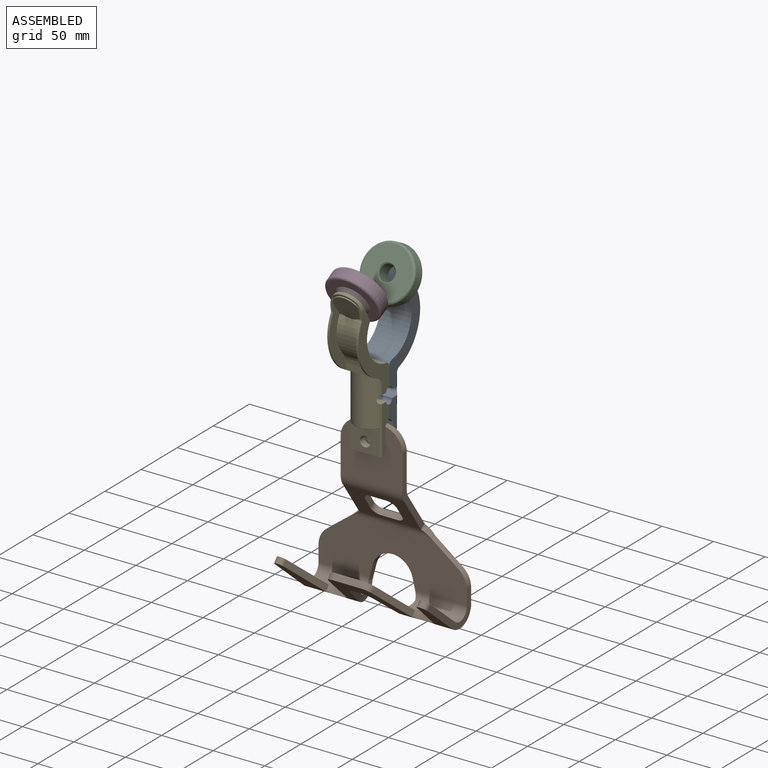
[diagram: assembled view]
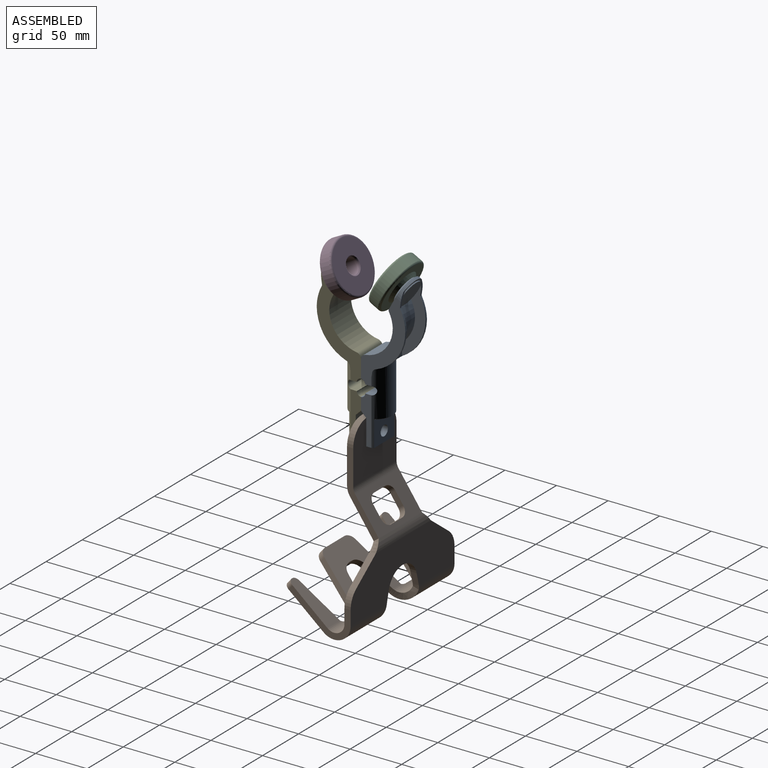
[diagram: assembled view, second angle]
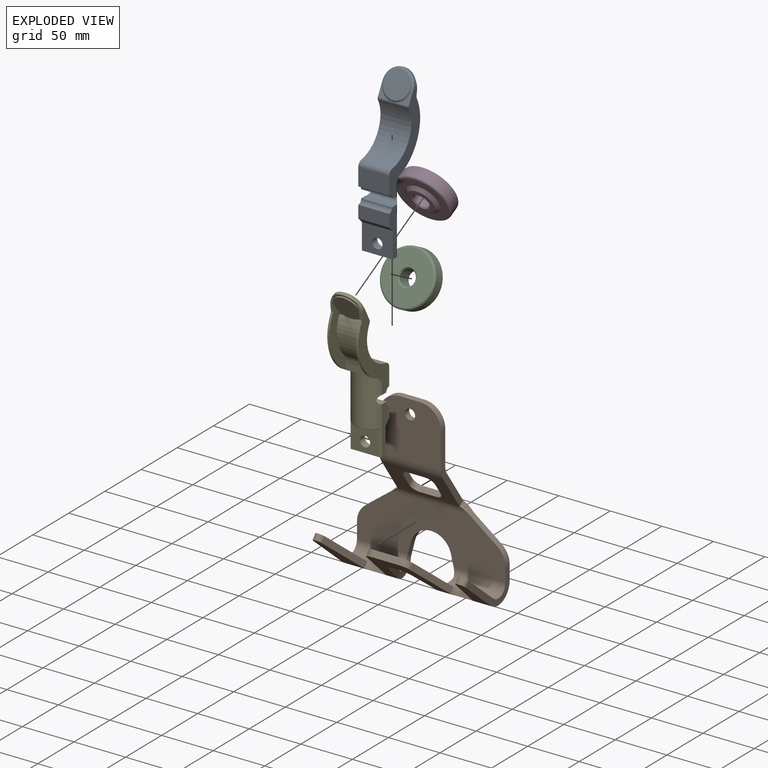
[diagram: exploded view]
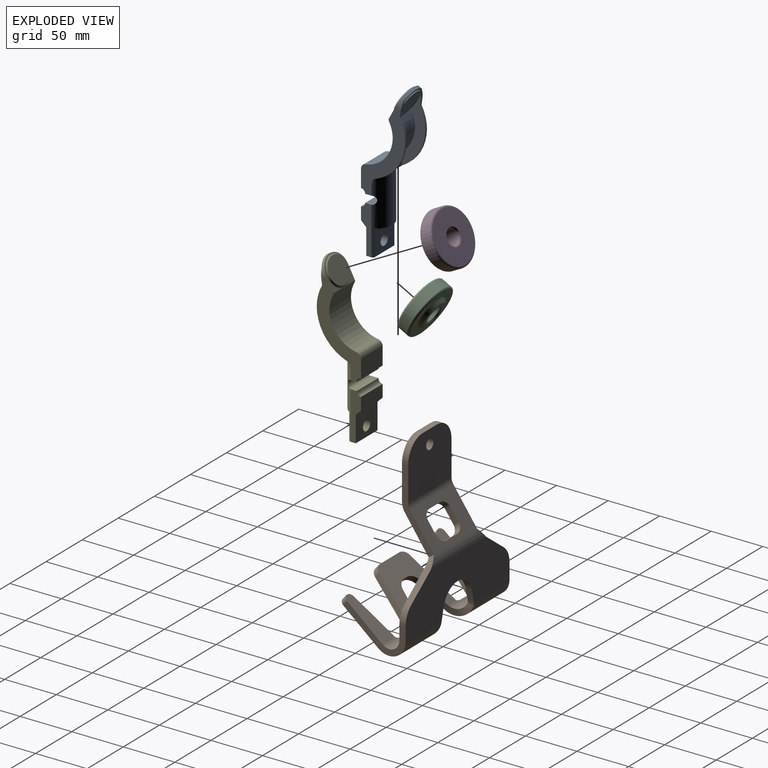
[diagram: exploded view, second angle]
ASSEMBLY  parts=5 mates=9
PART A: 68 faces, bbox 46.1x32.2x152.5 mm
  f0: plane 46.04x10.1mm, normal (0,1,0), area 313.5mm2, adj f2,f4,f40,f41,f42,f43,f44
  f1: plane 84.23x42.97mm, normal (0,1,0), area 1122.9mm2, adj f4,f5,f7,f9,f11,f32,f36,f52
  f2: plane 30x6.09mm, normal (0,0,1), area 182.8mm2, adj f0,f3,f38,f44
  f3: cylinder r=4.01mm len=30mm, axis (0,-1,0), area 377.6mm2, adj f2,f4,f56
  f4: cylinder r=16.26mm len=72.52mm, axis (0,0,-1), area 1778.6mm2, adj f0,f1,f3,f5,f6,f7,f8,f9
  f5: plane 0.21x0.09mm, normal (0.17,0,-0.99), area 0mm2, adj f1,f4,f7
  f6: plane 0.21x0.09mm, normal (0.17,0,-0.99), area 0mm2, adj f4,f8,f39
  f7: plane 3.11x0.44mm, normal (0.99,0,-0.14), area 0.6mm2, adj f1,f4,f5,f9
  f8: plane 3.11x0.44mm, normal (0.99,0,-0.14), area 0.6mm2, adj f4,f6,f10,f39
  f9: cylinder r=5mm len=4.17mm, axis (0,-1,0), area 6.9mm2, adj f1,f4,f7,f11
  f10: cylinder r=5mm len=4.17mm, axis (0,-1,0), area 6.9mm2, adj f4,f8,f11,f39
  f11: cylinder r=42.97mm len=40.23mm, axis (0,-1,0), area 266.1mm2, adj f1,f4,f9,f10,f12,f17,f18,f39
  f12: plane 65.15x23.49mm, normal (0,-1,0), area 615.7mm2, adj f11,f13,f14,f15,f16,f17,f20,f22
  f13: cylinder r=1mm len=9.28mm, axis (0,1,0), area 9mm2, adj f12,f14,f20,f28
  f14: cylinder r=32.82mm len=26mm, axis (0,-1,0), area 382.3mm2, adj f12,f13,f15,f18,f19,f24,f25
  f15: cylinder r=32.8mm len=26mm, axis (0,-1,0), area 553.8mm2, adj f12,f14,f16,f18
  f16: extruded ~26x15.73mm, area 454.7mm2, adj f12,f15,f17,f18
  f17: plane 26x2.28mm, normal (1,0,0), area 59.3mm2, adj f11,f12,f16,f18
  f18: plane 65.15x23.49mm, normal (0,1,0), area 615.7mm2, adj f11,f14,f15,f16,f17,f19,f21,f22
  f19: cylinder r=1mm len=9.28mm, axis (0,1,0), area 9mm2, adj f14,f18,f21,f26
  f20: plane 9.28x7.45mm, normal (0.88,0,-0.47), area 26.5mm2, adj f12,f13,f22
  f21: plane 9.28x7.45mm, normal (0.88,0,-0.47), area 26.5mm2, adj f18,f19,f22
  f22: torus R=13.93mm, axis (0.88,0,-0.47), area 64.4mm2, adj f12,f18,f20,f21,f23,f26,f28,f29
  f23: cylinder r=12.93mm len=25.85mm, axis (0.88,0,-0.47), area 77.8mm2, adj f22,f24,f25,f27
  f24: bspline ~4.12x3.24mm, area 8.8mm2, adj f14,f23,f25,f28
  f25: bspline ~4.12x3.24mm, area 8.8mm2, adj f14,f23,f24,f26
  f26: sphere r=1mm, area 0.3mm2, adj f19,f22,f25
  f27: plane 25.85x22.86mm, normal (0.88,0,-0.47), area 524.8mm2, adj f23
  f28: sphere r=1mm, area 0.5mm2, adj f13,f22,f24
  f29: cylinder r=13mm len=26mm, axis (-0.88,0,0.47), area 29.8mm2, adj f22,f30,f31,f32,f33,f34,f35,f37
  f30: plane 2.93x0.08mm, normal (0,0,-1), area 0.1mm2, adj f18,f29,f33
  f31: plane 2.93x0.08mm, normal (0,0,-1), area 0.1mm2, adj f12,f29,f32
  f32: plane 13.31x4.56mm, normal (0.99,0,-0.14), area 27.6mm2, adj f1,f12,f29,f31,f35,f36,f52
  f33: plane 13.31x4.56mm, normal (0.99,0,-0.14), area 27.6mm2, adj f18,f29,f30,f34,f36,f39,f53
  f34: cylinder r=2mm len=2.9mm, axis (0,-1,0), area 1.7mm2, adj f29,f33,f36,f37
  f35: cylinder r=2mm len=2.9mm, axis (0,-1,0), area 1.7mm2, adj f29,f32,f36,f37
  f36: cylinder r=15mm len=30mm, axis (-0.88,0,0.47), area 159.5mm2, adj f1,f32,f33,f34,f35,f37,f39,f67
  f37: plane 25.03x5.95mm, normal (0.88,0,-0.47), area 52.6mm2, adj f29,f34,f35,f36
  f38: plane 46.04x10.1mm, normal (0,-1,0), area 313.5mm2, adj f2,f4,f40,f41,f42,f43,f44
  f39: plane 84.23x42.97mm, normal (0,-1,0), area 1122.9mm2, adj f4,f6,f8,f10,f11,f33,f36,f53
  f40: plane 30x7mm, normal (0,0,-1), area 208.3mm2, adj f0,f4,f38,f41,f46
  f41: plane 30x25mm, normal (-1,0,0), area 671.5mm2, adj f0,f38,f40,f42,f45
  f42: plane 30x5.05mm, normal (-0.7,0,-0.71), area 212.7mm2, adj f0,f38,f41,f43
  f43: plane 30x12mm, normal (-1,0,0), area 360.1mm2, adj f0,f38,f42,f44
  f44: cylinder r=4.01mm len=30mm, axis (0,-1,0), area 190.1mm2, adj f0,f2,f38,f43
  f45: cylinder r=5mm len=10mm, axis (1,0,0), area 220mm2, adj f41,f46
  f46: plane 28.37x25.17mm, normal (1,0,0), area 608.9mm2, adj f4,f40,f45,f47,f50,f51
  f47: cylinder r=0.5mm len=26.25mm, axis (0,-1,0), area 20.6mm2, adj f46,f48,f50,f51
  f48: plane 26.25x7.03mm, normal (0,0,-1), area 129.9mm2, adj f47,f49
  f49: torus R=15.76mm, axis (0,0,-1), area 25.3mm2, adj f4,f48,f50,f51
  f50: bspline ~1.77x1.46mm, area 0.7mm2, adj f4,f46,f47,f49
  f51: bspline ~1.77x1.49mm, area 0.7mm2, adj f4,f46,f47,f49
  f52: cylinder r=2mm len=2mm, axis (0,-1,0), area 2.1mm2, adj f1,f12,f32,f54
  f53: cylinder r=2mm len=2mm, axis (0,-1,0), area 2.1mm2, adj f18,f33,f39,f55
  f54: cylinder r=42.99mm len=19.07mm, axis (0,-1,0), area 39.8mm2, adj f1,f11,f12,f52
  f55: cylinder r=42.99mm len=19.07mm, axis (0,-1,0), area 39.8mm2, adj f11,f18,f39,f53
  f56: plane 30x6.09mm, normal (0,0,-1), area 182.8mm2, adj f1,f3,f39,f57
  f57: cylinder r=4.01mm len=30mm, axis (0,-1,0), area 188.8mm2, adj f1,f39,f56,f58
  f58: plane 30x16.99mm, normal (-1,0,0), area 509.7mm2, adj f1,f39,f57,f59
  f59: cylinder r=5mm len=30mm, axis (0,-1,0), area 214.7mm2, adj f1,f39,f58,f60
  f60: cylinder r=30.8mm len=30.32mm, axis (0,-1,0), area 1316.4mm2, adj f1,f39,f59,f61
  f61: cylinder r=30.82mm len=30mm, axis (0,-1,0), area 432.5mm2, adj f1,f39,f60,f62
  f62: cylinder r=2mm len=30mm, axis (0,-1,0), area 55.8mm2, adj f1,f39,f61,f63,f66,f67
  f63: bspline ~5.42x3.51mm, area 11.7mm2, adj f62,f64,f65,f66
  f64: torus R=14.86mm, axis (0.88,0,-0.47), area 201.9mm2, adj f63,f65,f66,f67
  f65: plane 25.87x22.88mm, normal (-0.88,0,0.47), area 524.8mm2, adj f63,f64,f66
  f66: bspline ~5.42x3.51mm, area 11.7mm2, adj f62,f63,f64,f65
  f67: plane 30x25.6mm, normal (-0.88,0,0.47), area 84.4mm2, adj f1,f36,f39,f62,f64
PART B: 71 faces, bbox 143.9x70.1x169.1 mm
  f0: plane 14.35x12.56mm, normal (1,0,0), area 79.9mm2, adj f1,f56,f64,f67
  f1: plane 60x32.77mm, normal (0,-0.82,-0.57), area 1567.8mm2, adj f0,f2,f47,f51,f52,f61,f62,f63
  f2: cylinder r=10mm len=76.11mm, axis (-1,0,0), area 415.7mm2, adj f1,f3,f46,f53
  f3: plane 143.88x50.49mm, normal (0,-1,0), area 5460.6mm2, adj f2,f4,f6,f7,f19,f24,f41,f43
  f4: cylinder r=20mm len=15.92mm, axis (0,-1,0), area 110.4mm2, adj f3,f5,f24,f54
  f5: plane 143.88x50.49mm, normal (0,1,0), area 5460.6mm2, adj f4,f6,f7,f9,f24,f34,f43,f44
  f6: cylinder r=20mm len=38.79mm, axis (0,1,0), area 318mm2, adj f3,f5,f7,f69
  f7: plane 11.51x6mm, normal (0.97,0,-0.26), area 71.5mm2, adj f3,f5,f6,f8
  f8: bspline ~7.06x5.42mm, area 22.4mm2, adj f7,f9,f19,f27
  f9: cylinder r=16mm len=53.34mm, axis (-1,0,0), area 1804.8mm2, adj f5,f8,f10,f16,f17,f18,f23,f24
  f10: plane 62.95x43.5mm, normal (0,-0.64,-0.77), area 1877.6mm2, adj f9,f11,f13,f14,f15,f28,f29,f30
  f11: cylinder r=8mm len=8.57mm, axis (0,0.64,0.77), area 64.2mm2, adj f10,f12,f13,f70
  f12: plane 62.95x43.5mm, normal (0,0.64,0.77), area 1877.6mm2, adj f11,f13,f14,f15,f19,f28,f29,f30
  f13: plane 26.9x4.6mm, normal (0,-0.77,0.64), area 161.4mm2, adj f10,f11,f12,f14
  f14: cylinder r=8mm len=8.98mm, axis (0,0.64,0.77), area 67.5mm2, adj f10,f12,f13,f15
  f15: plane 42.23x36.8mm, normal (-0.99,-0.13,0.11), area 304.7mm2, adj f10,f12,f14,f16
  f16: bspline ~6.73x6.64mm, area 35.5mm2, adj f9,f15,f17,f19
  f17: plane 10.86x5.14mm, normal (0,-0.86,0.51), area 58.7mm2, adj f9,f16,f18,f19
  f18: bspline ~6.73x6.63mm, area 35.5mm2, adj f9,f17,f19,f22
  f19: cylinder r=10mm len=53.34mm, axis (-1,0,0), area 1126.4mm2, adj f3,f8,f12,f16,f17,f18,f20,f24
  f20: plane 43.49x36.49mm, normal (0,0.64,0.77), area 832.7mm2, adj f19,f21,f22,f24,f25,f26
  f21: cylinder r=4mm len=6.57mm, axis (0,0.64,0.77), area 32.1mm2, adj f20,f22,f23,f26
  f22: plane 45x39.12mm, normal (0.97,-0.18,0.15), area 331.2mm2, adj f18,f20,f21,f23
  f23: plane 43.49x36.49mm, normal (0,-0.64,-0.77), area 832.7mm2, adj f9,f21,f22,f24,f25,f26
  f24: plane 66.71x42.26mm, normal (-1,0,0), area 587.5mm2, adj f3,f4,f5,f9,f19,f20,f23,f25
  f25: cylinder r=4mm len=7.17mm, axis (0,0.64,0.77), area 37.7mm2, adj f20,f23,f24,f26
  f26: plane 4.6x3.86mm, normal (0,-0.77,0.64), area 5mm2, adj f20,f21,f23,f25
  f27: bspline ~26.42x14.47mm, area 157.6mm2, adj f8,f9,f19,f28
  f28: plane 26x23.18mm, normal (0.97,0.18,-0.15), area 178.2mm2, adj f10,f12,f27,f29
  f29: cylinder r=10mm len=9.75mm, axis (0,0.64,0.77), area 80.3mm2, adj f10,f12,f28,f30
  f30: plane 4.6x3.86mm, normal (0,0.77,-0.64), area 22.8mm2, adj f10,f12,f29,f31
  f31: cylinder r=10mm len=9.64mm, axis (0,0.64,0.77), area 78mm2, adj f10,f12,f30,f32
  f32: plane 26.28x23.41mm, normal (-0.96,0.2,-0.17), area 182.2mm2, adj f10,f12,f31,f33
  f33: bspline ~22.59x10.36mm, area 120mm2, adj f32,f34,f41,f68
  f34: cylinder r=16mm len=52.41mm, axis (-1,0,0), area 1739.9mm2, adj f5,f10,f33,f35,f38,f39,f40,f43
  f35: plane 37.83x31.74mm, normal (0,-0.64,-0.77), area 649.6mm2, adj f34,f36,f37,f43
  f36: cylinder r=5mm len=9.93mm, axis (0,0.64,0.77), area 89.3mm2, adj f35,f37,f42,f43
  f37: plane 38.51x33.68mm, normal (-0.99,-0.13,0.11), area 274.9mm2, adj f35,f36,f38,f42
  f38: bspline ~8.94x8.09mm, area 52mm2, adj f34,f37,f39,f41
  f39: plane 7.85x5.6mm, normal (0,-0.93,0.36), area 41.1mm2, adj f34,f38,f40,f41
  f40: bspline ~8.94x8.09mm, area 52mm2, adj f34,f39,f41,f70
  f41: cylinder r=10mm len=52.41mm, axis (-1,0,0), area 1084.4mm2, adj f3,f12,f33,f38,f39,f40,f42,f43
  f42: plane 37.83x31.74mm, normal (0,0.64,0.77), area 649.6mm2, adj f36,f37,f41,f43
  f43: plane 60.29x36.87mm, normal (1,0,0), area 527.8mm2, adj f3,f5,f34,f35,f36,f41,f42,f44
  f44: cylinder r=20mm len=15.96mm, axis (0,-1,0), area 110.8mm2, adj f3,f5,f43,f45
  f45: plane 27.06x20.45mm, normal (0.6,0,0.8), area 203.5mm2, adj f3,f5,f44,f46
  f46: bspline ~9.6x8.4mm, area 68.1mm2, adj f2,f45,f47,f55
  f47: plane 75.83x30.76mm, normal (1,0,0), area 491mm2, adj f1,f46,f48,f49,f52,f56,f57,f58
  f48: cylinder r=20mm len=20mm, axis (0,-1,0), area 188.5mm2, adj f47,f49,f58,f59
  f49: plane 60x53.88mm, normal (0,-1,0), area 2982.8mm2, adj f47,f48,f50,f51,f52,f59,f60
  f50: cylinder r=20mm len=20mm, axis (0,-1,0), area 188.5mm2, adj f49,f51,f58,f59
  f51: plane 75.83x30.76mm, normal (-1,0,0), area 491mm2, adj f1,f49,f50,f52,f53,f56,f57,f58
  f52: cylinder r=16mm len=60mm, axis (1,0,0), area 586.4mm2, adj f1,f47,f49,f51
  f53: bspline ~9.56x8.4mm, area 67.9mm2, adj f2,f51,f54,f55
  f54: plane 24.89x18.94mm, normal (-0.61,0,0.8), area 187.6mm2, adj f3,f4,f5,f53
  f55: cylinder r=16mm len=76.11mm, axis (-1,0,0), area 665.2mm2, adj f5,f46,f53,f56
  f56: plane 60x32.77mm, normal (0,0.82,0.57), area 1567.8mm2, adj f0,f47,f51,f55,f57,f61,f62,f63
  f57: cylinder r=10mm len=60mm, axis (1,0,0), area 366.5mm2, adj f47,f51,f56,f58
  f58: plane 60x53.88mm, normal (0,1,0), area 2982.8mm2, adj f47,f48,f50,f51,f57,f59,f60
  f59: plane 20x6mm, normal (0,0,1), area 120mm2, adj f48,f49,f50,f58
  f60: cylinder r=5mm len=10mm, axis (0,-1,0), area 188.5mm2, adj f49,f58
  f61: plane 14.35x12.56mm, normal (-1,0,0), area 79.9mm2, adj f1,f56,f62,f65
  f62: cylinder r=7.62mm len=9.68mm, axis (0,-0.82,-0.57), area 71.8mm2, adj f1,f56,f61,f63
  f63: plane 15.66x4.92mm, normal (0,-0.57,0.82), area 93.9mm2, adj f1,f56,f62,f64
  f64: cylinder r=7.62mm len=9.68mm, axis (0,-0.82,-0.57), area 71.8mm2, adj f0,f1,f56,f63
  f65: cylinder r=7.62mm len=9.68mm, axis (0,-0.82,-0.57), area 71.8mm2, adj f1,f56,f61,f66
  f66: plane 15.66x4.92mm, normal (0,0.57,-0.82), area 93.9mm2, adj f1,f56,f65,f67
  f67: cylinder r=7.62mm len=9.68mm, axis (0,-0.82,-0.57), area 71.8mm2, adj f0,f1,f56,f66
  f68: bspline ~11.84x9.37mm, area 60.6mm2, adj f33,f34,f41,f69
  f69: plane 11x6mm, normal (-0.97,0,-0.23), area 67.8mm2, adj f3,f5,f6,f68
  f70: plane 42.67x37.17mm, normal (0.97,-0.18,0.15), area 312.3mm2, adj f10,f11,f12,f40
PART C: 10 faces, bbox 56.3x16x56.3 mm
  f0: plane 26x26mm, normal (0,1,0), area 304mm2, adj f1,f9
  f1: cone r=14.5mm half-angle=45deg, axis (0,-1,0), area 386.5mm2, adj f0,f2
  f2: plane 48x48mm, normal (0,1,0), area 1005.3mm2, adj f1,f3
  f3: torus R=24mm, axis (0,-1,0), area 498.9mm2, adj f2,f4
  f4: cylinder r=26mm len=52mm, axis (0,-1,0), area 1470.3mm2, adj f3,f5
  f5: torus R=24mm, axis (0,-1,0), area 498.9mm2, adj f4,f6
  f6: plane 48x48mm, normal (0,-1,0), area 1582.6mm2, adj f5,f7
  f7: cone r=8mm half-angle=45deg, axis (0,-1,0), area 71.1mm2, adj f6,f8
  f8: cylinder r=7.5mm len=15mm, axis (0,-1,0), area 659.7mm2, adj f7,f9
  f9: cone r=8mm half-angle=45deg, axis (0,1,0), area 71.1mm2, adj f0,f8
PART D: same geometry as C
PART E: same geometry as A
PLACE A rot(axis=(0,0,1),90deg) t=(0,1.05,70)mm
PLACE B t=(-55.78,4,-146.06)mm
PLACE C rot(axis=(0,0.97,-0.24),180deg) t=(0,30.56,130.38)mm
PLACE D rot(axis=(0,-0.24,0.97),180deg) t=(0,-28.47,130.38)mm
PLACE E rot(axis=(0,0,-1),90deg) t=(0,1.05,70)mm
MATE planar E.f41 <-> B.f60  axis (0,1,0) through (0,-4,2.79)mm
MATE slider D.f1 <-> E.f36  axis (0,0.88,0.47) through (0,-30.24,129.45)mm
MATE planar E.f40 <-> A.f40  axis (0,0,-1) through (0,-7.48,-10)mm
MATE planar A.f36 <-> C.f0  axis (0,-0.88,0.47) through (0,33.21,128.98)mm
MATE planar E.f43 <-> A.f43  axis (0,1,0) through (0,1.05,25.98)mm
MATE planar E.f0 <-> A.f38  axis (1,0,0) through (15,-5.29,16.24)mm
MATE planar D.f1 <-> E.f36  axis (0,-0.88,-0.47) through (0,-31.12,128.98)mm
MATE slider C.f1 <-> A.f22  axis (0,0.88,-0.47) through (0,33.21,128.98)mm
MATE slider E.f45 <-> B.f60  axis (0,-1,0) through (0,-4,0)mm
